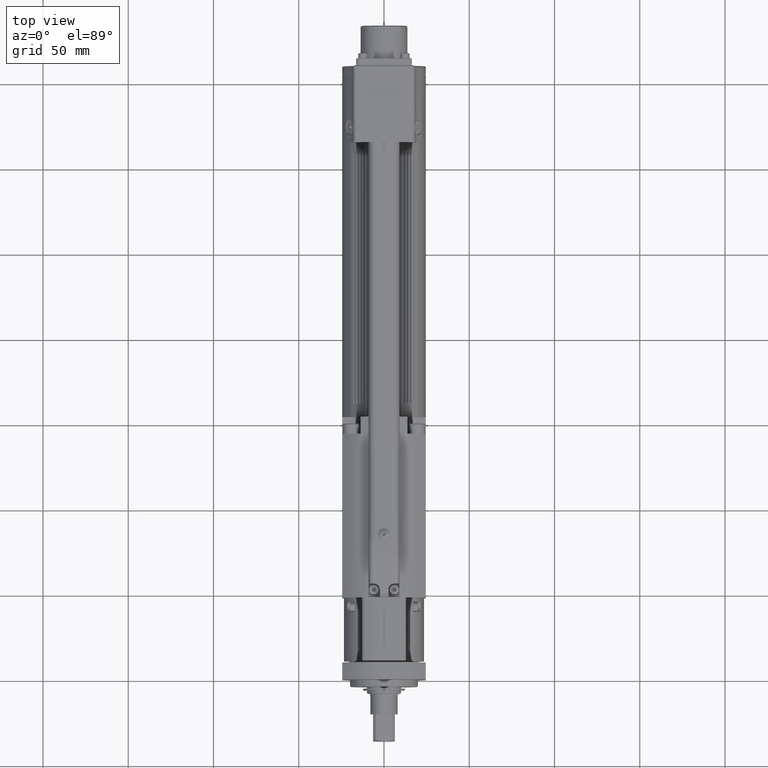
[diagram: clean part render]
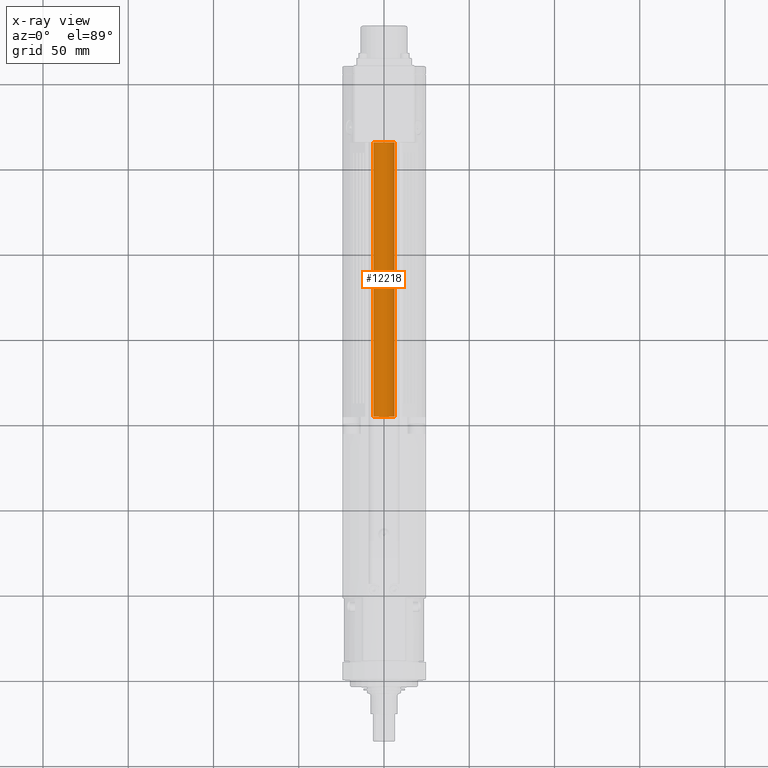
[diagram: x-ray — body ghosted, one internal face saturated and labeled with its STEP entity id]
A machine part, top view, then the same camera in x-ray: the body is ghosted and one INTERNAL B-rep face — a face not visible from any outside direction — is saturated and labeled: STEP entity #12218.
In plain terms, the highlighted cylindrical surface (edge-blend (fillet) strip) has radius 8 mm, axis along (0, 1, 0).
Its self-contained STEP definition (entity closure, byte-faithful):
#942=LINE('',#17457,#1977);
#944=LINE('',#17461,#1979);
#1977=VECTOR('',#13974,10.);
#1979=VECTOR('',#13976,10.);
#2994=CYLINDRICAL_SURFACE('',#13338,8.00000000000003);
#3625=FACE_OUTER_BOUND('',#4379,.T.);
#4379=EDGE_LOOP('',(#10642,#10643,#10644,#10645));
#4734=CIRCLE('',#12856,8.00000000000003);
#4750=CIRCLE('',#12968,8.00000000000003);
#5131=VERTEX_POINT('',#17454);
#5132=VERTEX_POINT('',#17456);
#5133=VERTEX_POINT('',#17458);
#5134=VERTEX_POINT('',#17460);
#6276=EDGE_CURVE('',#5132,#5131,#942,.T.);
#6278=EDGE_CURVE('',#5134,#5133,#944,.T.);
#6788=EDGE_CURVE('',#5134,#5131,#4734,.T.);
#7021=EDGE_CURVE('',#5132,#5133,#4750,.T.);
#10642=ORIENTED_EDGE('',*,*,#6278,.T.);
#10643=ORIENTED_EDGE('',*,*,#7021,.F.);
#10644=ORIENTED_EDGE('',*,*,#6276,.T.);
#10645=ORIENTED_EDGE('',*,*,#6788,.F.);
#12218=ADVANCED_FACE('',(#3625),#2994,.F.);
#12856=AXIS2_PLACEMENT_3D('',#18757,#15002,#15003);
#12968=AXIS2_PLACEMENT_3D('',#19237,#15443,#15444);
#13338=AXIS2_PLACEMENT_3D('',#21005,#16513,#16514);
#13974=DIRECTION('',(2.21945204084769E-16,1.,7.29172631221787E-18));
#13976=DIRECTION('',(-2.21945204084769E-16,-1.,-7.29172631221787E-18));
#15002=DIRECTION('center_axis',(-2.21945204084769E-16,-1.,-7.29172631221787E-18));
#15003=DIRECTION('ref_axis',(-0.804648356891478,1.74258369258298E-16,0.593751649893998));
#15443=DIRECTION('center_axis',(2.18217717075214E-16,1.,7.16926448557887E-18));
#15444=DIRECTION('ref_axis',(0.804648356891478,-1.74258369258298E-16,-0.593751649893998));
#16513=DIRECTION('center_axis',(2.21945204084769E-16,1.,7.29172631221787E-18));
#16514=DIRECTION('ref_axis',(0.804648356891478,-1.74258369258298E-16,-0.593751649893998));
#17454=CARTESIAN_POINT('',(6.24498558825482,315.,27.0000000000408));
#17456=CARTESIAN_POINT('',(6.24498558822211,154.,27.));
#17457=CARTESIAN_POINT('',(6.24498558825479,162.,27.0000000000408));
#17458=CARTESIAN_POINT('',(-6.24498558865755,154.,27.0000000000001));
#17460=CARTESIAN_POINT('',(-6.24498558862413,315.,26.9999999999584));
#17461=CARTESIAN_POINT('',(-6.24498558862417,162.,26.9999999999584));
#18757=CARTESIAN_POINT('Origin',(-2.17680717728944E-10,315.,32.000015499994));
#19237=CARTESIAN_POINT('Origin',(-2.17716450906802E-10,154.,32.000015499994));
#21005=CARTESIAN_POINT('Origin',(-2.17714675345169E-10,162.,32.000015499994));